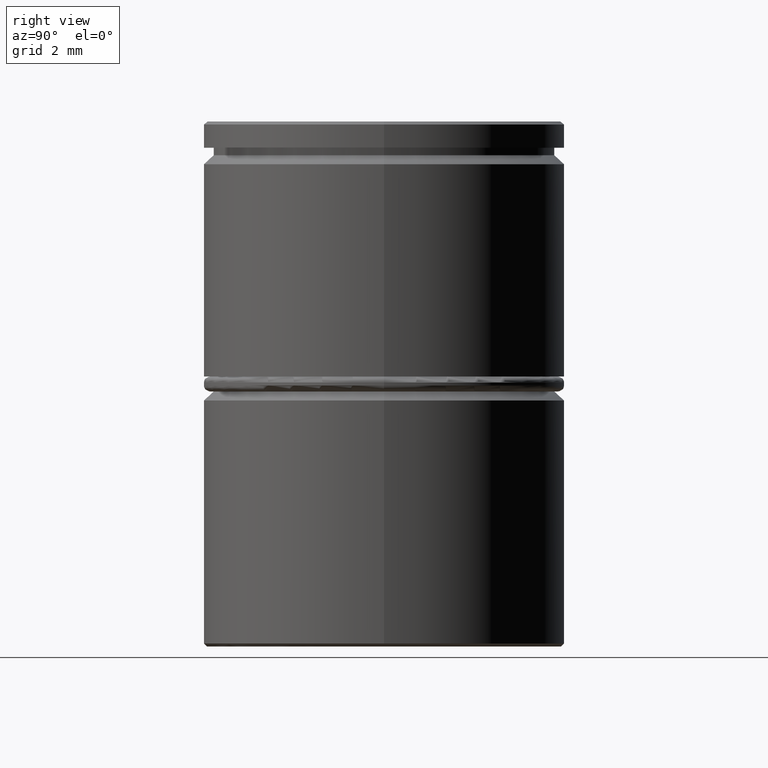
[diagram: clean part render]
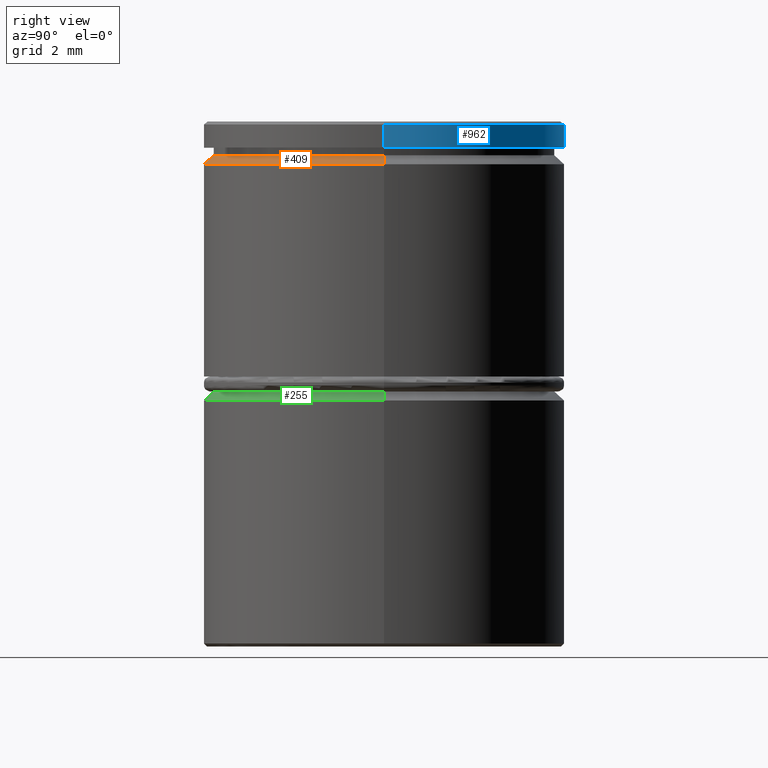
[diagram: same view with three faces highlighted in distinct colors, each labeled with its STEP entity id]
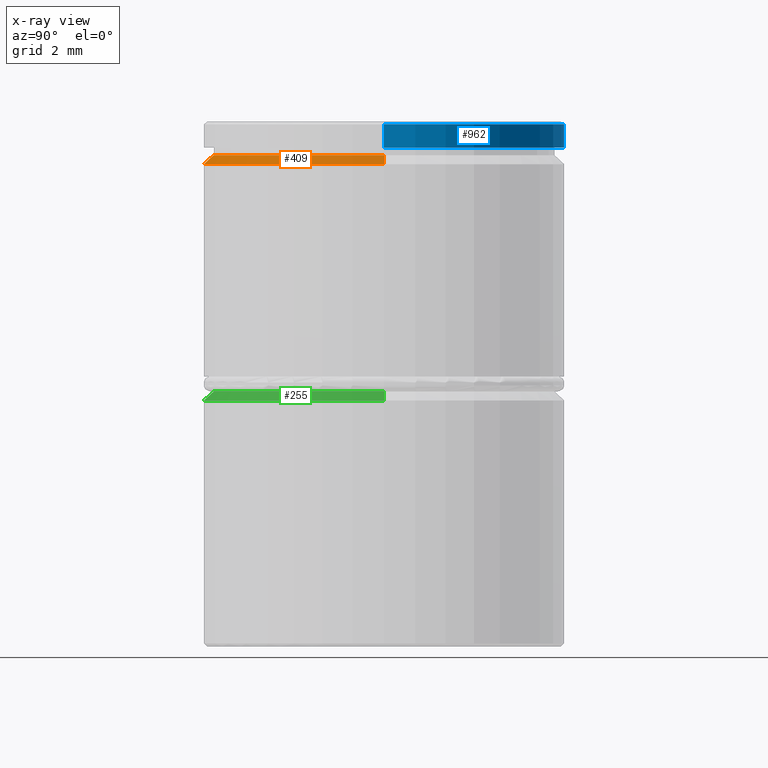
[diagram: x-ray of the same camera — body ghosted, the three highlighted faces saturated]
A machine part, right view with three faces highlighted in distinct colors.
The next image is the same camera in x-ray (body ghosted, the three faces saturated) — at least one of them is partly hidden behind the body in this view.
Their STEP definitions:

[orange] entity #409 — the highlighted conical surface has half-angle 45 deg.
#23 = EDGE_CURVE ( 'NONE', #680, #353, #369, .T. ) ;
#32 = EDGE_LOOP ( 'NONE', ( #884, #808, #901, #889 ) ) ;
#94 = DIRECTION ( 'NONE',  ( -1.000000000000000000, 0.000000000000000000, 0.000000000000000000 ) ) ;
#99 = DIRECTION ( 'NONE',  ( 0.000000000000000000, 0.000000000000000000, -1.000000000000000000 ) ) ;
#121 = DIRECTION ( 'NONE',  ( -0.7071067811865434649, 0.000000000000000000, -0.7071067811865516806 ) ) ;
#169 = AXIS2_PLACEMENT_3D ( 'NONE', #483, #960, #94 ) ;
#320 = DIRECTION ( 'NONE',  ( 0.7071067811865434649, 8.659560562354884787E-17, -0.7071067811865516806 ) ) ;
#338 = CARTESIAN_POINT ( 'NONE',  ( 0.000000000000000000, 0.000000000000000000, -1.424999999999999156 ) ) ;
#353 = VERTEX_POINT ( 'NONE', #555 ) ;
#369 = LINE ( 'NONE', #827, #902 ) ;
#409 = ADVANCED_FACE ( 'NONE', ( #648 ), #874, .T. ) ;
#430 = CIRCLE ( 'NONE', #1026, 6.000000000000000000 ) ;
#467 = DIRECTION ( 'NONE',  ( -0.000000000000000000, -0.000000000000000000, 1.000000000000000000 ) ) ;
#472 = CARTESIAN_POINT ( 'NONE',  ( 0.000000000000000000, 0.000000000000000000, -1.125000000000000222 ) ) ;
#479 = DIRECTION ( 'NONE',  ( 1.000000000000000000, 0.000000000000000000, 0.000000000000000000 ) ) ;
#482 = AXIS2_PLACEMENT_3D ( 'NONE', #472, #467, #798 ) ;
#483 = CARTESIAN_POINT ( 'NONE',  ( 0.000000000000000000, 0.000000000000000000, -1.125000000000000222 ) ) ;
#509 = CARTESIAN_POINT ( 'NONE',  ( 6.000000000000000000, 0.000000000000000000, -1.424999999999999156 ) ) ;
#553 = VECTOR ( 'NONE', #320, 1000.000000000000000 ) ;
#555 = CARTESIAN_POINT ( 'NONE',  ( -6.000000000000000000, 7.347880794884119736E-16, -1.424999999999999156 ) ) ;
#556 = CARTESIAN_POINT ( 'NONE',  ( -5.700000000000000178, 6.980486755139913108E-16, -1.125000000000000222 ) ) ;
#568 = CIRCLE ( 'NONE', #482, 5.700000000000000178 ) ;
#648 = FACE_OUTER_BOUND ( 'NONE', #32, .T. ) ;
#680 = VERTEX_POINT ( 'NONE', #556 ) ;
#705 = VERTEX_POINT ( 'NONE', #784 ) ;
#721 = CARTESIAN_POINT ( 'NONE',  ( 5.700000000000004619, 6.980486755139919025E-16, -1.125000000000000222 ) ) ;
#761 = EDGE_CURVE ( 'NONE', #705, #995, #952, .T. ) ;
#784 = CARTESIAN_POINT ( 'NONE',  ( 5.700000000000000178, 0.000000000000000000, -1.125000000000000222 ) ) ;
#798 = DIRECTION ( 'NONE',  ( 1.000000000000000000, 0.000000000000000000, 0.000000000000000000 ) ) ;
#808 = ORIENTED_EDGE ( 'NONE', *, *, #869, .F. ) ;
#827 = CARTESIAN_POINT ( 'NONE',  ( -5.700000000000004619, 0.000000000000000000, -1.125000000000000222 ) ) ;
#869 = EDGE_CURVE ( 'NONE', #680, #705, #568, .T. ) ;
#874 = CONICAL_SURFACE ( 'NONE', #169, 5.700000000000004619, 0.7853981633974425058 ) ;
#884 = ORIENTED_EDGE ( 'NONE', *, *, #761, .F. ) ;
#889 = ORIENTED_EDGE ( 'NONE', *, *, #944, .F. ) ;
#901 = ORIENTED_EDGE ( 'NONE', *, *, #23, .T. ) ;
#902 = VECTOR ( 'NONE', #121, 1000.000000000000000 ) ;
#944 = EDGE_CURVE ( 'NONE', #995, #353, #430, .T. ) ;
#952 = LINE ( 'NONE', #721, #553 ) ;
#960 = DIRECTION ( 'NONE',  ( 0.000000000000000000, 0.000000000000000000, -1.000000000000000000 ) ) ;
#995 = VERTEX_POINT ( 'NONE', #509 ) ;
#1026 = AXIS2_PLACEMENT_3D ( 'NONE', #338, #99, #479 ) ;

[blue] entity #962 — the highlighted cylindrical surface (partial cylindrical patch) has radius 6 mm, axis along (-0, -0, 1).
#34 = CARTESIAN_POINT ( 'NONE',  ( -6.000000000000000000, 7.347880794884119736E-16, 0.000000000000000000 ) ) ;
#76 = VERTEX_POINT ( 'NONE', #866 ) ;
#118 = EDGE_LOOP ( 'NONE', ( #943, #294, #210, #932 ) ) ;
#129 = AXIS2_PLACEMENT_3D ( 'NONE', #965, #248, #322 ) ;
#182 = DIRECTION ( 'NONE',  ( 0.000000000000000000, 0.000000000000000000, -1.000000000000000000 ) ) ;
#185 = CARTESIAN_POINT ( 'NONE',  ( 6.000000000000000000, 0.000000000000000000, -0.8749999999999998890 ) ) ;
#188 = EDGE_CURVE ( 'NONE', #297, #237, #368, .T. ) ;
#191 = FACE_OUTER_BOUND ( 'NONE', #118, .T. ) ;
#210 = ORIENTED_EDGE ( 'NONE', *, *, #284, .T. ) ;
#213 = CARTESIAN_POINT ( 'NONE',  ( 6.000000000000000000, 0.000000000000000000, 0.000000000000000000 ) ) ;
#237 = VERTEX_POINT ( 'NONE', #616 ) ;
#248 = DIRECTION ( 'NONE',  ( -0.000000000000000000, -0.000000000000000000, 1.000000000000000000 ) ) ;
#284 = EDGE_CURVE ( 'NONE', #76, #237, #480, .T. ) ;
#291 = EDGE_CURVE ( 'NONE', #297, #812, #375, .T. ) ;
#294 = ORIENTED_EDGE ( 'NONE', *, *, #816, .T. ) ;
#297 = VERTEX_POINT ( 'NONE', #185 ) ;
#322 = DIRECTION ( 'NONE',  ( 1.000000000000000000, 0.000000000000000000, 0.000000000000000000 ) ) ;
#333 = CARTESIAN_POINT ( 'NONE',  ( 0.000000000000000000, 0.000000000000000000, 0.000000000000000000 ) ) ;
#354 = DIRECTION ( 'NONE',  ( 1.000000000000000000, 0.000000000000000000, 0.000000000000000000 ) ) ;
#368 = LINE ( 'NONE', #213, #987 ) ;
#375 = CIRCLE ( 'NONE', #129, 6.000000000000000000 ) ;
#418 = LINE ( 'NONE', #34, #876 ) ;
#480 = CIRCLE ( 'NONE', #903, 6.000000000000000000 ) ;
#505 = DIRECTION ( 'NONE',  ( -0.000000000000000000, -0.000000000000000000, 1.000000000000000000 ) ) ;
#549 = DIRECTION ( 'NONE',  ( 1.000000000000000000, 0.000000000000000000, 0.000000000000000000 ) ) ;
#561 = CYLINDRICAL_SURFACE ( 'NONE', #1011, 6.000000000000000000 ) ;
#616 = CARTESIAN_POINT ( 'NONE',  ( 6.000000000000000000, 0.000000000000000000, -0.09999999999999852063 ) ) ;
#700 = DIRECTION ( 'NONE',  ( -0.000000000000000000, -0.000000000000000000, 1.000000000000000000 ) ) ;
#803 = CARTESIAN_POINT ( 'NONE',  ( 0.000000000000000000, 0.000000000000000000, -0.09999999999999852063 ) ) ;
#812 = VERTEX_POINT ( 'NONE', #895 ) ;
#816 = EDGE_CURVE ( 'NONE', #812, #76, #418, .T. ) ;
#866 = CARTESIAN_POINT ( 'NONE',  ( -6.000000000000000000, 7.347880794884119736E-16, -0.09999999999999852063 ) ) ;
#876 = VECTOR ( 'NONE', #505, 1000.000000000000000 ) ;
#887 = DIRECTION ( 'NONE',  ( -0.000000000000000000, -0.000000000000000000, 1.000000000000000000 ) ) ;
#895 = CARTESIAN_POINT ( 'NONE',  ( -6.000000000000000000, 7.347880794884119736E-16, -0.8749999999999998890 ) ) ;
#903 = AXIS2_PLACEMENT_3D ( 'NONE', #803, #182, #549 ) ;
#932 = ORIENTED_EDGE ( 'NONE', *, *, #188, .F. ) ;
#943 = ORIENTED_EDGE ( 'NONE', *, *, #291, .T. ) ;
#962 = ADVANCED_FACE ( 'NONE', ( #191 ), #561, .T. ) ;
#965 = CARTESIAN_POINT ( 'NONE',  ( 0.000000000000000000, 0.000000000000000000, -0.8749999999999998890 ) ) ;
#987 = VECTOR ( 'NONE', #700, 1000.000000000000000 ) ;
#1011 = AXIS2_PLACEMENT_3D ( 'NONE', #333, #887, #354 ) ;

[green] entity #255 — the highlighted conical surface has half-angle 45 deg.
#6 = EDGE_LOOP ( 'NONE', ( #858, #285, #361, #241 ) ) ;
#12 = VERTEX_POINT ( 'NONE', #512 ) ;
#16 = CIRCLE ( 'NONE', #80, 5.700000000000000178 ) ;
#18 = CARTESIAN_POINT ( 'NONE',  ( 5.700000000000008171, 6.980486755139922969E-16, -9.000000000000001776 ) ) ;
#64 = CIRCLE ( 'NONE', #662, 6.000000000000000000 ) ;
#75 = EDGE_CURVE ( 'NONE', #12, #758, #710, .T. ) ;
#80 = AXIS2_PLACEMENT_3D ( 'NONE', #687, #751, #201 ) ;
#120 = DIRECTION ( 'NONE',  ( 0.7071067811865485719, 8.659560562354946417E-17, -0.7071067811865465735 ) ) ;
#138 = DIRECTION ( 'NONE',  ( 0.000000000000000000, 0.000000000000000000, -1.000000000000000000 ) ) ;
#201 = DIRECTION ( 'NONE',  ( 1.000000000000000000, 0.000000000000000000, 0.000000000000000000 ) ) ;
#225 = DIRECTION ( 'NONE',  ( -0.7071067811865485719, 0.000000000000000000, -0.7071067811865465735 ) ) ;
#241 = ORIENTED_EDGE ( 'NONE', *, *, #1023, .F. ) ;
#255 = ADVANCED_FACE ( 'NONE', ( #777 ), #738, .T. ) ;
#285 = ORIENTED_EDGE ( 'NONE', *, *, #989, .F. ) ;
#290 = CARTESIAN_POINT ( 'NONE',  ( 0.000000000000000000, 0.000000000000000000, -9.299999999999991829 ) ) ;
#296 = CARTESIAN_POINT ( 'NONE',  ( 0.000000000000000000, 0.000000000000000000, -9.000000000000001776 ) ) ;
#361 = ORIENTED_EDGE ( 'NONE', *, *, #75, .T. ) ;
#425 = CARTESIAN_POINT ( 'NONE',  ( 5.700000000000000178, 0.000000000000000000, -9.000000000000001776 ) ) ;
#444 = VERTEX_POINT ( 'NONE', #691 ) ;
#512 = CARTESIAN_POINT ( 'NONE',  ( -5.700000000000000178, 6.980486755139913108E-16, -9.000000000000001776 ) ) ;
#514 = VECTOR ( 'NONE', #225, 1000.000000000000000 ) ;
#542 = CARTESIAN_POINT ( 'NONE',  ( -5.700000000000008171, 0.000000000000000000, -9.000000000000001776 ) ) ;
#567 = AXIS2_PLACEMENT_3D ( 'NONE', #296, #138, #626 ) ;
#618 = DIRECTION ( 'NONE',  ( 0.000000000000000000, 0.000000000000000000, -1.000000000000000000 ) ) ;
#626 = DIRECTION ( 'NONE',  ( -1.000000000000000000, 0.000000000000000000, 0.000000000000000000 ) ) ;
#662 = AXIS2_PLACEMENT_3D ( 'NONE', #290, #618, #924 ) ;
#687 = CARTESIAN_POINT ( 'NONE',  ( 0.000000000000000000, 0.000000000000000000, -9.000000000000001776 ) ) ;
#691 = CARTESIAN_POINT ( 'NONE',  ( 6.000000000000000000, 0.000000000000000000, -9.299999999999991829 ) ) ;
#710 = LINE ( 'NONE', #542, #514 ) ;
#714 = CARTESIAN_POINT ( 'NONE',  ( -6.000000000000000000, 7.347880794884119736E-16, -9.299999999999991829 ) ) ;
#738 = CONICAL_SURFACE ( 'NONE', #567, 5.700000000000008171, 0.7853981633974497223 ) ;
#751 = DIRECTION ( 'NONE',  ( -0.000000000000000000, -0.000000000000000000, 1.000000000000000000 ) ) ;
#758 = VERTEX_POINT ( 'NONE', #714 ) ;
#777 = FACE_OUTER_BOUND ( 'NONE', #6, .T. ) ;
#807 = LINE ( 'NONE', #18, #956 ) ;
#858 = ORIENTED_EDGE ( 'NONE', *, *, #975, .F. ) ;
#924 = DIRECTION ( 'NONE',  ( 1.000000000000000000, 0.000000000000000000, 0.000000000000000000 ) ) ;
#956 = VECTOR ( 'NONE', #120, 1000.000000000000000 ) ;
#975 = EDGE_CURVE ( 'NONE', #976, #444, #807, .T. ) ;
#976 = VERTEX_POINT ( 'NONE', #425 ) ;
#989 = EDGE_CURVE ( 'NONE', #12, #976, #16, .T. ) ;
#1023 = EDGE_CURVE ( 'NONE', #444, #758, #64, .T. ) ;